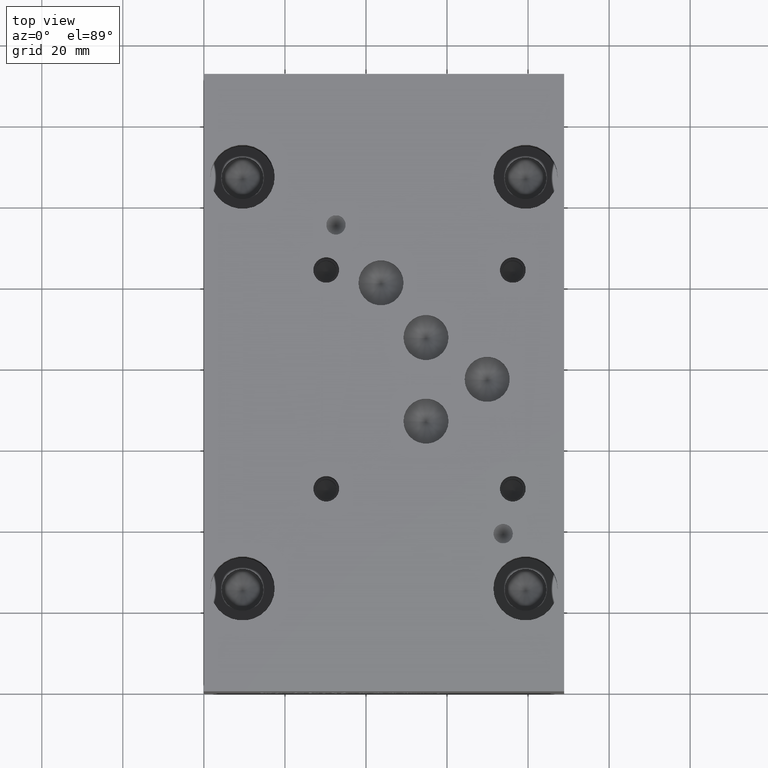
[diagram: clean part render]
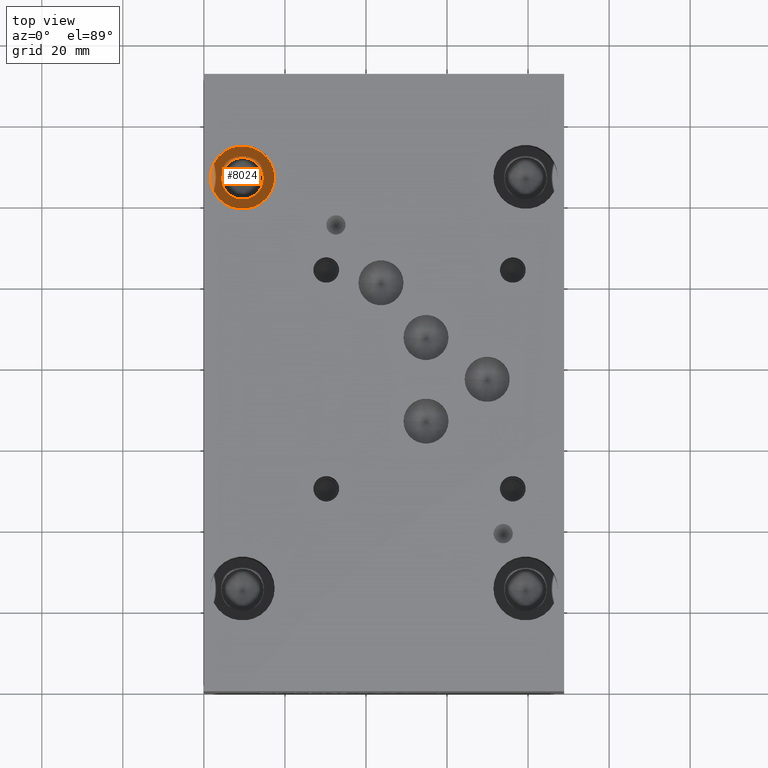
[diagram: same view with one face highlighted and labeled with its STEP entity id]
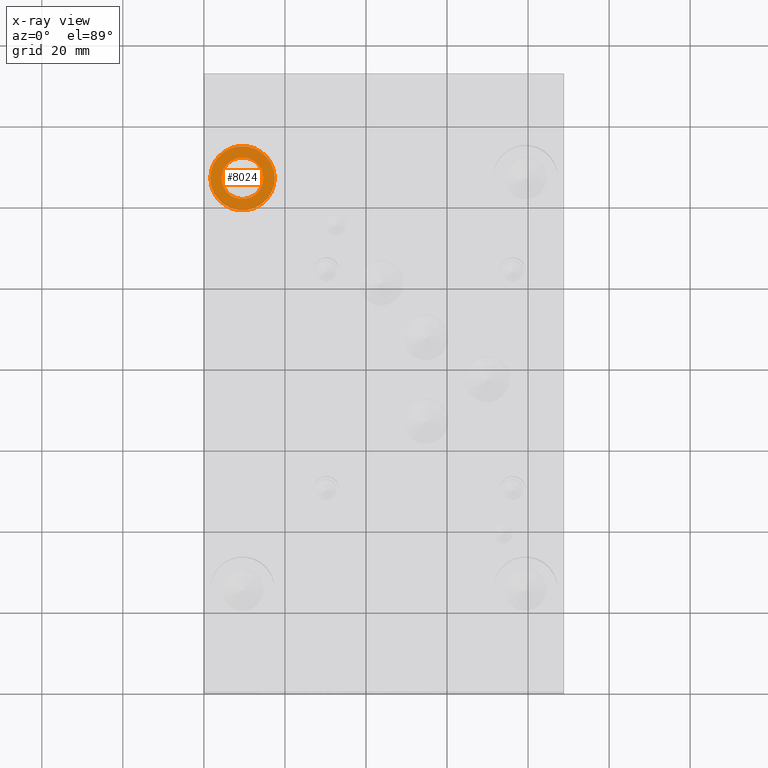
[diagram: x-ray of the same camera — body ghosted, the highlighted face saturated]
A machine part, top view. The second image highlights one B-rep face of the part: STEP entity #8024.
The next image is the same camera in x-ray: the body ghosted, the highlighted face saturated — about 5% of this face is hidden behind the body in this view.
In plain terms, the highlighted planar face has unit normal (0, 0, 1).
Its self-contained STEP definition (entity closure, byte-faithful):
#122=CIRCLE('',#8441,7.9375);
#123=CIRCLE('',#8442,7.9375);
#124=CIRCLE('',#8443,5.1562);
#263=FACE_BOUND('',#1329,.T.);
#882=FACE_OUTER_BOUND('',#1328,.T.);
#1328=EDGE_LOOP('',(#6808,#6809));
#1329=EDGE_LOOP('',(#6810));
#3688=VERTEX_POINT('',#13318);
#3689=VERTEX_POINT('',#13319);
#3690=VERTEX_POINT('',#13322);
#4762=EDGE_CURVE('',#3688,#3689,#122,.T.);
#4763=EDGE_CURVE('',#3689,#3688,#123,.T.);
#4764=EDGE_CURVE('',#3690,#3690,#124,.T.);
#6808=ORIENTED_EDGE('',*,*,#4762,.T.);
#6809=ORIENTED_EDGE('',*,*,#4763,.T.);
#6810=ORIENTED_EDGE('',*,*,#4764,.F.);
#7337=PLANE('',#8440);
#8024=ADVANCED_FACE('',(#882,#263),#7337,.T.);
#8440=AXIS2_PLACEMENT_3D('',#13317,#10036,#10037);
#8441=AXIS2_PLACEMENT_3D('',#13320,#10038,#10039);
#8442=AXIS2_PLACEMENT_3D('',#13321,#10040,#10041);
#8443=AXIS2_PLACEMENT_3D('',#13323,#10042,#10043);
#10036=DIRECTION('center_axis',(0.,0.,1.));
#10037=DIRECTION('ref_axis',(1.,0.,0.));
#10038=DIRECTION('center_axis',(0.,0.,1.));
#10039=DIRECTION('ref_axis',(1.,0.,0.));
#10040=DIRECTION('center_axis',(0.,0.,1.));
#10041=DIRECTION('ref_axis',(1.,0.,0.));
#10042=DIRECTION('center_axis',(0.,0.,1.));
#10043=DIRECTION('ref_axis',(1.,0.,0.));
#13317=CARTESIAN_POINT('Origin',(9.525,127.,17.4752));
#13318=CARTESIAN_POINT('',(17.4625,127.,17.4752));
#13319=CARTESIAN_POINT('',(1.5875,127.,17.4752));
#13320=CARTESIAN_POINT('Origin',(9.525,127.,17.4752));
#13321=CARTESIAN_POINT('Origin',(9.525,127.,17.4752));
#13322=CARTESIAN_POINT('',(4.3688,127.,17.4752));
#13323=CARTESIAN_POINT('Origin',(9.525,127.,17.4752));